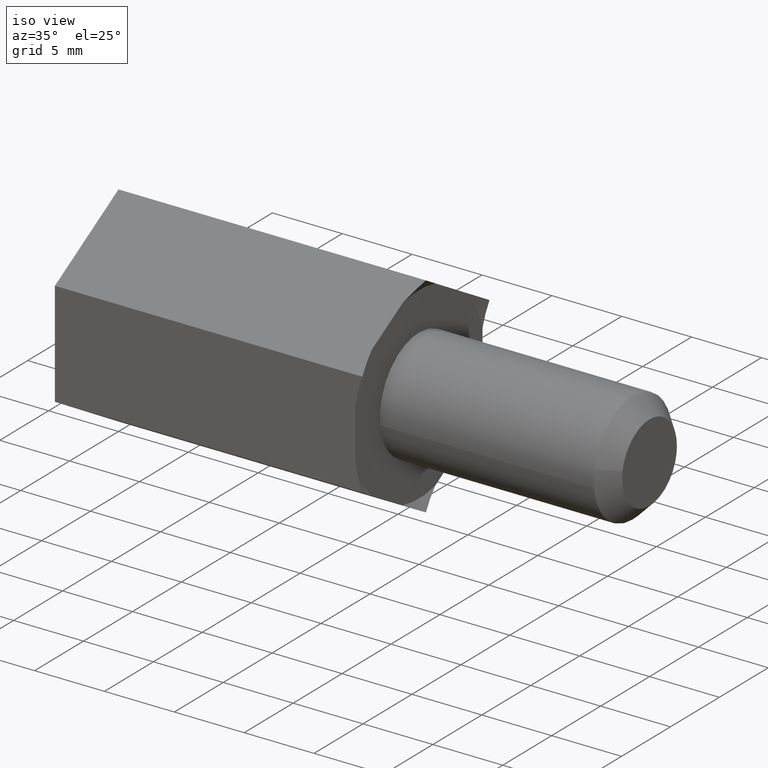
[diagram: clean part render]
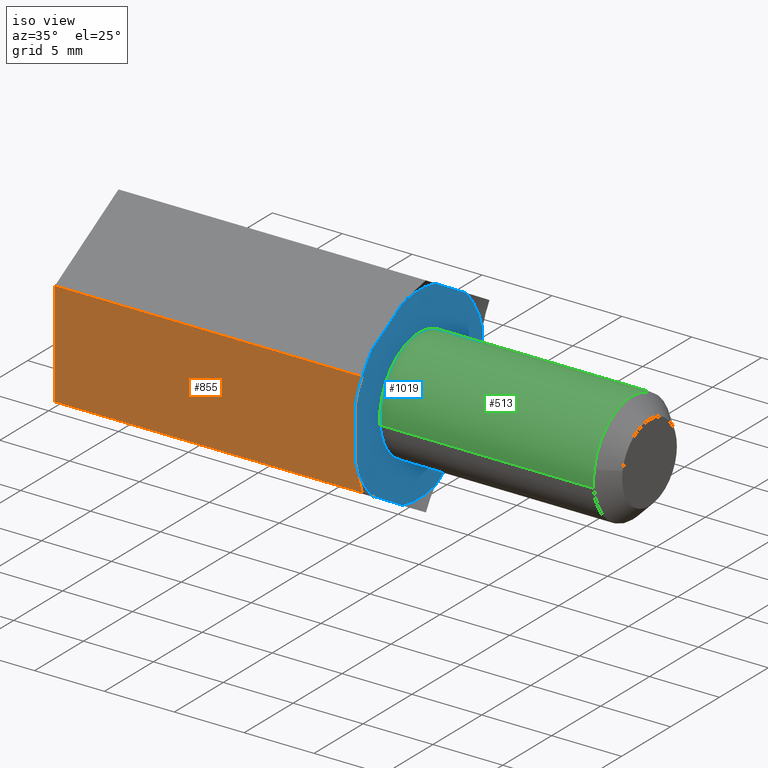
[diagram: same view with three faces highlighted in distinct colors, each labeled with its STEP entity id]
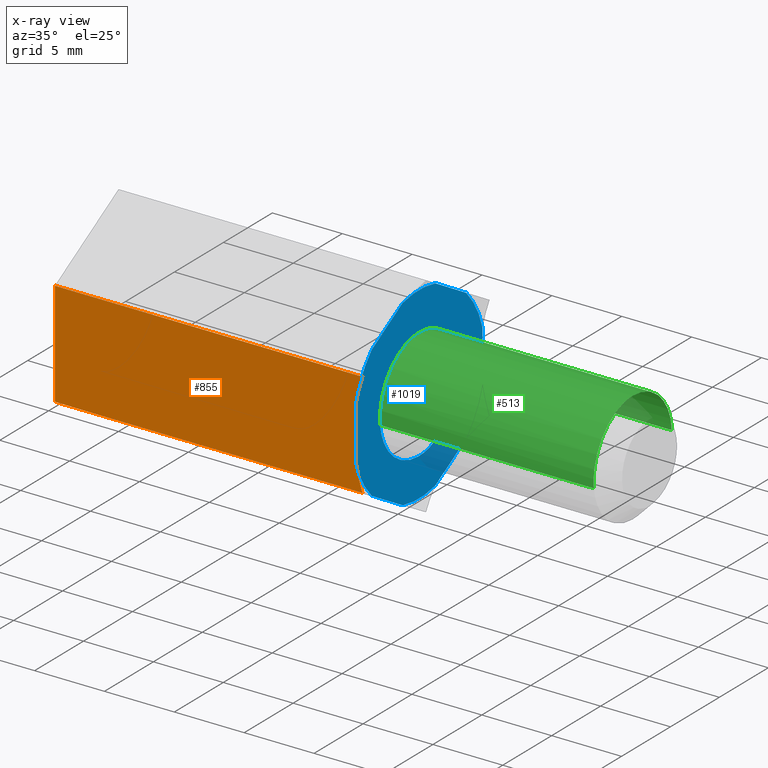
[diagram: x-ray of the same camera — body ghosted, the three highlighted faces saturated]
A machine part, iso view with three faces highlighted in distinct colors.
The next image is the same camera in x-ray (body ghosted, the three faces saturated) — at least one of them is partly hidden behind the body in this view.
Their STEP definitions:

[orange] entity #855 — the highlighted face is a freeform B-spline surface patch.
#755=CARTESIAN_POINT('',(22.0,-6.500030202791479,-3.752817437978915));
#756=VERTEX_POINT('',#755);
#772=CARTESIAN_POINT('',(0.0,-6.500000000000000,-3.752800000000000));
#773=VERTEX_POINT('',#772);
#774=CARTESIAN_POINT('',(22.0,-6.500030202791479,-3.752817437978915));
#775=CARTESIAN_POINT('',(0.0,-6.500000000000000,-3.752800000000000));
#776=QUASI_UNIFORM_CURVE('',1,(#774,#775),.UNSPECIFIED.,.F.,.U.);
#777=EDGE_CURVE('',#756,#773,#776,.T.);
#804=CARTESIAN_POINT('',(-1.098899957359731,-6.500000000000000,4.127723884753853));
#805=CARTESIAN_POINT('',(-1.098899957359731,-6.500000000000000,-4.127724086767634));
#806=CARTESIAN_POINT('',(23.098900547445709,-6.500000000000000,4.127723884753853));
#807=CARTESIAN_POINT('',(23.098900547445709,-6.500000000000000,-4.127724086767634));
#808=B_SPLINE_SURFACE_WITH_KNOTS('',1,1,((#804,#806),(#805,#807)),.UNSPECIFIED.,.F.,.F.,.U.,(2,2),(2,2),(0.0,8.255447971521488),(0.0,24.197800504805439),.UNSPECIFIED.);
#809=CARTESIAN_POINT('',(22.0,-6.500030203193870,3.752817437281950));
#810=VERTEX_POINT('',#809);
#811=CARTESIAN_POINT('',(21.500000000000000,-6.500000000000000,1.820027472320130));
#812=VERTEX_POINT('',#811);
#813=CARTESIAN_POINT('',(22.0,-6.500030203193870,3.752817437281950));
#814=CARTESIAN_POINT('',(21.899631590712239,-6.500025379989542,3.449475447014697));
#815=CARTESIAN_POINT('',(21.807243653070788,-6.500020538274503,3.142805209942485));
#816=CARTESIAN_POINT('',(21.642876491832510,-6.500010807244426,2.520935418611853));
#817=CARTESIAN_POINT('',(21.571798829861901,-6.500005968184482,2.208933825969666));
#818=CARTESIAN_POINT('',(21.509096226766712,-6.500000774045899,1.870522637043986));
#819=CARTESIAN_POINT('',(21.504505260712062,-6.500000386918038,1.845278977143948));
#820=CARTESIAN_POINT('',(21.500000000000000,-6.500000000000000,1.820027472320130));
#821=B_SPLINE_CURVE_WITH_KNOTS('',3,(#813,#814,#815,#816,#817,#818,#819,#820),.UNSPECIFIED.,.F.,.U.,(4,2,2,4),(0.000006476241290,0.125000000000000,0.250000000000000,0.260072590094712),.UNSPECIFIED.);
#822=EDGE_CURVE('',#810,#812,#821,.T.);
#823=ORIENTED_EDGE('',*,*,#822,.F.);
#824=CARTESIAN_POINT('',(0.0,-6.500000000000000,3.752800000000000));
#825=VERTEX_POINT('',#824);
#826=CARTESIAN_POINT('',(22.0,-6.500030203193870,3.752817437281950));
#827=CARTESIAN_POINT('',(0.0,-6.500000000000000,3.752800000000000));
#828=QUASI_UNIFORM_CURVE('',1,(#826,#827),.UNSPECIFIED.,.F.,.U.);
#829=EDGE_CURVE('',#810,#825,#828,.T.);
#830=ORIENTED_EDGE('',*,*,#829,.T.);
#831=CARTESIAN_POINT('',(0.0,-6.500000000000000,-3.752800000000000));
#832=CARTESIAN_POINT('',(0.0,-6.500000000000000,3.752800000000000));
#833=QUASI_UNIFORM_CURVE('',1,(#831,#832),.UNSPECIFIED.,.F.,.U.);
#834=EDGE_CURVE('',#773,#825,#833,.T.);
#835=ORIENTED_EDGE('',*,*,#834,.F.);
#836=ORIENTED_EDGE('',*,*,#777,.F.);
#837=CARTESIAN_POINT('',(21.500000000000000,-6.500000000000000,-1.820027472320130));
#838=VERTEX_POINT('',#837);
#839=CARTESIAN_POINT('',(21.500000000000000,-6.500000000000000,-1.820027472320130));
#840=CARTESIAN_POINT('',(21.505351194392990,-6.500000459538708,-1.850018763683645));
#841=CARTESIAN_POINT('',(21.510819255601231,-6.500000919038809,-1.879977187578140));
#842=CARTESIAN_POINT('',(21.633328553379890,-6.500011001222829,-2.536659269663350));
#843=CARTESIAN_POINT('',(21.800322370404199,-6.500020607405506,-3.149334329996048));
#844=CARTESIAN_POINT('',(22.0,-6.500030202791479,-3.752817437978915));
#845=B_SPLINE_CURVE_WITH_KNOTS('',3,(#839,#840,#841,#842,#843,#844),.UNSPECIFIED.,.F.,.U.,(4,2,4),(0.738063403781413,0.750000000000000,0.999993489330758),.UNSPECIFIED.);
#846=EDGE_CURVE('',#838,#756,#845,.T.);
#847=ORIENTED_EDGE('',*,*,#846,.F.);
#848=CARTESIAN_POINT('',(21.500000000000000,-6.500000000000000,1.820027472320130));
#849=CARTESIAN_POINT('',(21.500000000000000,-6.500000000000000,-1.820027472320130));
#850=QUASI_UNIFORM_CURVE('',1,(#848,#849),.UNSPECIFIED.,.F.,.U.);
#851=EDGE_CURVE('',#812,#838,#850,.T.);
#852=ORIENTED_EDGE('',*,*,#851,.F.);
#853=EDGE_LOOP('',(#823,#830,#835,#836,#847,#852));
#854=FACE_OUTER_BOUND('',#853,.T.);
#855=ADVANCED_FACE('',(#854),#808,.T.);

[blue] entity #1019 — the highlighted face is a freeform B-spline surface patch.
#464=CARTESIAN_POINT('',(21.500000000000000,-3.972038105450791,-0.472136938659629));
#465=VERTEX_POINT('',#464);
#466=CARTESIAN_POINT('',(21.500000000000000,0.0,4.0));
#467=VERTEX_POINT('',#466);
#468=CARTESIAN_POINT('',(21.499999999999993,-3.972038105450791,-0.472136938659628));
#469=CARTESIAN_POINT('',(21.500000000000000,-4.0,-0.236896478640580));
#470=CARTESIAN_POINT('',(21.500000000000000,-4.0,0.0));
#471=CARTESIAN_POINT('',(21.499999999999996,-4.000000000000000,4.000000000000000));
#472=CARTESIAN_POINT('',(21.500000000000000,0.0,4.0));
#480=(BOUNDED_CURVE()B_SPLINE_CURVE(2,(#468,#469,#470,#471,#472),.UNSPECIFIED.,.F.,.U.)B_SPLINE_CURVE_WITH_KNOTS((3,2,3),(0.729562473512871,0.750000000000000,1.0),.UNSPECIFIED.)CURVE()GEOMETRIC_REPRESENTATION_ITEM()RATIONAL_B_SPLINE_CURVE((0.956026754182449,0.976055948330398,1.0,0.707106781186548,1.0))REPRESENTATION_ITEM(''));
#481=EDGE_CURVE('',#465,#467,#480,.T.);
#491=CARTESIAN_POINT('',(21.500000000000000,3.992539193685000,0.244194158179767));
#492=VERTEX_POINT('',#491);
#498=CARTESIAN_POINT('',(21.500000000000000,0.0,4.0));
#499=CARTESIAN_POINT('',(21.500000000000000,3.762824267546601,4.000000000000001));
#500=CARTESIAN_POINT('',(21.500000000000004,3.992539193685000,0.244194158179767));
#508=(BOUNDED_CURVE()B_SPLINE_CURVE(2,(#498,#499,#500),.UNSPECIFIED.,.F.,.U.)B_SPLINE_CURVE_WITH_KNOTS((3,3),(0.0,0.239332962238482),.UNSPECIFIED.)CURVE()GEOMETRIC_REPRESENTATION_ITEM()RATIONAL_B_SPLINE_CURVE((1.0,0.719603993287251,0.976072041665729))REPRESENTATION_ITEM(''));
#509=EDGE_CURVE('',#467,#492,#508,.T.);
#532=CARTESIAN_POINT('',(21.500000000000000,0.0,-4.0));
#533=VERTEX_POINT('',#532);
#534=CARTESIAN_POINT('',(21.500000000000000,0.0,-4.0));
#535=CARTESIAN_POINT('',(21.500000000000004,-3.552698103746738,-4.000000000000000));
#536=CARTESIAN_POINT('',(21.500000000000000,-3.972038105450791,-0.472136938659628));
#544=(BOUNDED_CURVE()B_SPLINE_CURVE(2,(#534,#535,#536),.UNSPECIFIED.,.F.,.U.)B_SPLINE_CURVE_WITH_KNOTS((3,3),(0.500000000000000,0.729562473512870),.UNSPECIFIED.)CURVE()GEOMETRIC_REPRESENTATION_ITEM()RATIONAL_B_SPLINE_CURVE((1.0,0.731050832856151,0.956026754182448))REPRESENTATION_ITEM(''));
#545=EDGE_CURVE('',#533,#465,#544,.T.);
#547=CARTESIAN_POINT('',(21.500000000000004,3.992539193685000,0.244194158179767));
#548=CARTESIAN_POINT('',(21.499999999999996,4.000000000000001,0.122211053234808));
#549=CARTESIAN_POINT('',(21.500000000000000,4.0,0.0));
#550=CARTESIAN_POINT('',(21.499999999999996,4.000000000000000,-4.000000000000000));
#551=CARTESIAN_POINT('',(21.500000000000000,0.0,-4.0));
#559=(BOUNDED_CURVE()B_SPLINE_CURVE(2,(#547,#548,#549,#550,#551),.UNSPECIFIED.,.F.,.U.)B_SPLINE_CURVE_WITH_KNOTS((3,2,3),(0.239332962238482,0.250000000000000,0.500000000000000),.UNSPECIFIED.)CURVE()GEOMETRIC_REPRESENTATION_ITEM()RATIONAL_B_SPLINE_CURVE((0.976072041665729,0.987502787899297,1.0,0.707106781186548,1.0))REPRESENTATION_ITEM(''));
#560=EDGE_CURVE('',#492,#533,#559,.T.);
#589=CARTESIAN_POINT('',(21.500000000000000,4.826124370814700,4.719218532493331));
#590=VERTEX_POINT('',#589);
#625=CARTESIAN_POINT('',(21.500000000000000,1.673936035152030,6.539146591889460));
#626=VERTEX_POINT('',#625);
#636=CARTESIAN_POINT('',(21.500000000000000,4.826124370814700,4.719218532493331));
#637=CARTESIAN_POINT('',(21.500000000000000,1.673936035152030,6.539146591889460));
#638=QUASI_UNIFORM_CURVE('',1,(#636,#637),.UNSPECIFIED.,.F.,.U.);
#639=EDGE_CURVE('',#590,#626,#638,.T.);
#651=CARTESIAN_POINT('',(21.500000000000000,6.500000000000000,-1.820027472320130));
#652=VERTEX_POINT('',#651);
#677=CARTESIAN_POINT('',(21.500000000000000,6.500000000000000,1.820027472320130));
#678=VERTEX_POINT('',#677);
#688=CARTESIAN_POINT('',(21.500000000000000,6.500000000000000,-1.820027472320130));
#689=CARTESIAN_POINT('',(21.500000000000000,6.500000000000000,1.820027472320130));
#690=QUASI_UNIFORM_CURVE('',1,(#688,#689),.UNSPECIFIED.,.F.,.U.);
#691=EDGE_CURVE('',#652,#678,#690,.T.);
#703=CARTESIAN_POINT('',(21.500000000000000,1.673705002214420,-6.539205728952291));
#704=VERTEX_POINT('',#703);
#731=CARTESIAN_POINT('',(21.500000000000000,4.826182197785970,-4.719159394825920));
#732=VERTEX_POINT('',#731);
#742=CARTESIAN_POINT('',(21.500000000000000,1.673705002214420,-6.539205728952291));
#743=CARTESIAN_POINT('',(21.500000000000000,4.826182197785970,-4.719159394825920));
#744=QUASI_UNIFORM_CURVE('',1,(#742,#743),.UNSPECIFIED.,.F.,.U.);
#745=EDGE_CURVE('',#704,#732,#744,.T.);
#757=CARTESIAN_POINT('',(21.500000000000000,-4.826182197785970,-4.719159394825930));
#758=VERTEX_POINT('',#757);
#785=CARTESIAN_POINT('',(21.500000000000000,-1.673705002214425,-6.539205728952291));
#786=VERTEX_POINT('',#785);
#796=CARTESIAN_POINT('',(21.500000000000000,-4.826182197785970,-4.719159394825930));
#797=CARTESIAN_POINT('',(21.500000000000000,-1.673705002214425,-6.539205728952291));
#798=QUASI_UNIFORM_CURVE('',1,(#796,#797),.UNSPECIFIED.,.F.,.U.);
#799=EDGE_CURVE('',#758,#786,#798,.T.);
#811=CARTESIAN_POINT('',(21.500000000000000,-6.500000000000000,1.820027472320130));
#812=VERTEX_POINT('',#811);
#837=CARTESIAN_POINT('',(21.500000000000000,-6.500000000000000,-1.820027472320130));
#838=VERTEX_POINT('',#837);
#848=CARTESIAN_POINT('',(21.500000000000000,-6.500000000000000,1.820027472320130));
#849=CARTESIAN_POINT('',(21.500000000000000,-6.500000000000000,-1.820027472320130));
#850=QUASI_UNIFORM_CURVE('',1,(#848,#849),.UNSPECIFIED.,.F.,.U.);
#851=EDGE_CURVE('',#812,#838,#850,.T.);
#861=CARTESIAN_POINT('',(21.500000000000000,-1.673936035152030,6.539146591889460));
#862=VERTEX_POINT('',#861);
#883=CARTESIAN_POINT('',(21.500000000000000,-4.826124370814700,4.719218532493320));
#884=VERTEX_POINT('',#883);
#894=CARTESIAN_POINT('',(21.500000000000000,-1.673936035152030,6.539146591889460));
#895=CARTESIAN_POINT('',(21.500000000000000,-4.826124370814700,4.719218532493320));
#896=QUASI_UNIFORM_CURVE('',1,(#894,#895),.UNSPECIFIED.,.F.,.U.);
#897=EDGE_CURVE('',#862,#884,#896,.T.);
#917=CARTESIAN_POINT('',(21.500000000000000,-6.500000000000001,1.820027472320127));
#918=CARTESIAN_POINT('',(21.500000000000000,-6.034120657317083,3.483857152637354));
#919=CARTESIAN_POINT('',(21.500000000000000,-4.826124370814700,4.719218532493322));
#927=(BOUNDED_CURVE()B_SPLINE_CURVE(2,(#917,#918,#919),.UNSPECIFIED.,.F.,.U.)CURVE()GEOMETRIC_REPRESENTATION_ITEM()QUASI_UNIFORM_CURVE()RATIONAL_B_SPLINE_CURVE((1.0,0.968765513649683,1.0))REPRESENTATION_ITEM(''));
#928=EDGE_CURVE('',#812,#884,#927,.T.);
#934=CARTESIAN_POINT('',(21.500000000000000,-7.149349974803478,-7.424324973834381));
#935=CARTESIAN_POINT('',(21.500000000000000,-7.149349974803478,7.424325335932599));
#936=CARTESIAN_POINT('',(21.500000000000000,7.149350323490650,-7.424324973834381));
#937=CARTESIAN_POINT('',(21.500000000000000,7.149350323490650,7.424325335932599));
#938=B_SPLINE_SURFACE_WITH_KNOTS('',1,1,((#934,#936),(#935,#937)),.UNSPECIFIED.,.F.,.F.,.U.,(2,2),(2,2),(0.0,14.848650309766979),(0.0,14.298700298294129),.UNSPECIFIED.);
#939=ORIENTED_EDGE('',*,*,#639,.T.);
#940=CARTESIAN_POINT('',(21.500000000000000,-1.673936035152030,6.539146591889457));
#941=CARTESIAN_POINT('',(21.500000000000004,-1.084202E-015,6.967652331958950));
#942=CARTESIAN_POINT('',(21.500000000000000,1.673936035152027,6.539146591889458));
#950=(BOUNDED_CURVE()B_SPLINE_CURVE(2,(#940,#941,#942),.UNSPECIFIED.,.F.,.U.)CURVE()GEOMETRIC_REPRESENTATION_ITEM()QUASI_UNIFORM_CURVE()RATIONAL_B_SPLINE_CURVE((1.0,0.968762458057698,1.0))REPRESENTATION_ITEM(''));
#951=EDGE_CURVE('',#862,#626,#950,.T.);
#952=ORIENTED_EDGE('',*,*,#951,.F.);
#953=ORIENTED_EDGE('',*,*,#897,.T.);
#954=ORIENTED_EDGE('',*,*,#928,.F.);
#955=ORIENTED_EDGE('',*,*,#851,.T.);
#956=CARTESIAN_POINT('',(21.500000000000000,-4.826182197785967,-4.719159394825927));
#957=CARTESIAN_POINT('',(21.499999999999996,-6.034132538864485,-3.483814719180008));
#958=CARTESIAN_POINT('',(21.500000000000000,-6.500000000000001,-1.820027472320130));
#966=(BOUNDED_CURVE()B_SPLINE_CURVE(2,(#956,#957,#958),.UNSPECIFIED.,.F.,.U.)CURVE()GEOMETRIC_REPRESENTATION_ITEM()QUASI_UNIFORM_CURVE()RATIONAL_B_SPLINE_CURVE((1.0,0.968767032944536,1.0))REPRESENTATION_ITEM(''));
#967=EDGE_CURVE('',#758,#838,#966,.T.);
#968=ORIENTED_EDGE('',*,*,#967,.F.);
#969=ORIENTED_EDGE('',*,*,#799,.T.);
#970=CARTESIAN_POINT('',(21.500000000000000,1.673705002214420,-6.539205728952289));
#971=CARTESIAN_POINT('',(21.500000000000004,4.336809E-016,-6.967589320255264));
#972=CARTESIAN_POINT('',(21.500000000000000,-1.673705002214422,-6.539205728952288));
#980=(BOUNDED_CURVE()B_SPLINE_CURVE(2,(#970,#971,#972),.UNSPECIFIED.,.F.,.U.)CURVE()GEOMETRIC_REPRESENTATION_ITEM()QUASI_UNIFORM_CURVE()RATIONAL_B_SPLINE_CURVE((1.0,0.968771219104043,1.0))REPRESENTATION_ITEM(''));
#981=EDGE_CURVE('',#704,#786,#980,.T.);
#982=ORIENTED_EDGE('',*,*,#981,.F.);
#983=ORIENTED_EDGE('',*,*,#745,.T.);
#984=CARTESIAN_POINT('',(21.500000000000000,6.500000000000001,-1.820027472320129));
#985=CARTESIAN_POINT('',(21.499999999999996,6.034132538864486,-3.483814719180003));
#986=CARTESIAN_POINT('',(21.500000000000000,4.826182197785973,-4.719159394825922));
#994=(BOUNDED_CURVE()B_SPLINE_CURVE(2,(#984,#985,#986),.UNSPECIFIED.,.F.,.U.)CURVE()GEOMETRIC_REPRESENTATION_ITEM()QUASI_UNIFORM_CURVE()RATIONAL_B_SPLINE_CURVE((1.0,0.968767032944536,1.0))REPRESENTATION_ITEM(''));
#995=EDGE_CURVE('',#652,#732,#994,.T.);
#996=ORIENTED_EDGE('',*,*,#995,.F.);
#997=ORIENTED_EDGE('',*,*,#691,.T.);
#998=CARTESIAN_POINT('',(21.500000000000000,4.826124370814696,4.719218532493327));
#999=CARTESIAN_POINT('',(21.500000000000004,6.034120657317081,3.483857152637357));
#1000=CARTESIAN_POINT('',(21.500000000000000,6.500000000000000,1.820027472320130));
#1008=(BOUNDED_CURVE()B_SPLINE_CURVE(2,(#998,#999,#1000),.UNSPECIFIED.,.F.,.U.)CURVE()GEOMETRIC_REPRESENTATION_ITEM()QUASI_UNIFORM_CURVE()RATIONAL_B_SPLINE_CURVE((1.0,0.968765513649683,1.0))REPRESENTATION_ITEM(''));
#1009=EDGE_CURVE('',#590,#678,#1008,.T.);
#1010=ORIENTED_EDGE('',*,*,#1009,.F.);
#1011=EDGE_LOOP('',(#939,#952,#953,#954,#955,#968,#969,#982,#983,#996,#997,#1010));
#1012=FACE_OUTER_BOUND('',#1011,.T.);
#1013=ORIENTED_EDGE('',*,*,#509,.T.);
#1014=ORIENTED_EDGE('',*,*,#560,.T.);
#1015=ORIENTED_EDGE('',*,*,#545,.T.);
#1016=ORIENTED_EDGE('',*,*,#481,.T.);
#1017=EDGE_LOOP('',(#1013,#1014,#1015,#1016));
#1018=FACE_BOUND('',#1017,.T.);
#1019=ADVANCED_FACE('',(#1012,#1018),#938,.F.);

[green] entity #513 — the highlighted face is a freeform B-spline surface patch.
#244=CARTESIAN_POINT('',(36.799999999984472,-3.932359569543480,0.732494515982311));
#245=VERTEX_POINT('',#244);
#246=CARTESIAN_POINT('',(36.799999999999997,0.0,4.0));
#247=VERTEX_POINT('',#246);
#248=CARTESIAN_POINT('',(36.799999999984465,-3.932359569543480,0.732494515982311));
#249=CARTESIAN_POINT('',(36.799999999999997,-3.323709773880725,4.0));
#250=CARTESIAN_POINT('',(36.799999999999997,0.0,4.0));
#258=(BOUNDED_CURVE()B_SPLINE_CURVE(2,(#248,#249,#250),.UNSPECIFIED.,.F.,.U.)B_SPLINE_CURVE_WITH_KNOTS((3,3),(0.281445263723857,0.500000000000000),.UNSPECIFIED.)CURVE()GEOMETRIC_REPRESENTATION_ITEM()RATIONAL_B_SPLINE_CURVE((0.935586817218081,0.743947199220621,1.0))REPRESENTATION_ITEM(''));
#259=EDGE_CURVE('',#245,#247,#258,.T.);
#307=CARTESIAN_POINT('',(36.799999999999997,3.992539193685000,0.244194158179768));
#308=VERTEX_POINT('',#307);
#324=CARTESIAN_POINT('',(36.799999999999997,0.0,4.0));
#325=CARTESIAN_POINT('',(36.800000000000004,3.762824267546587,4.000000000000000));
#326=CARTESIAN_POINT('',(36.799999999999997,3.992539193685000,0.244194158179768));
#334=(BOUNDED_CURVE()B_SPLINE_CURVE(2,(#324,#325,#326),.UNSPECIFIED.,.F.,.U.)B_SPLINE_CURVE_WITH_KNOTS((3,3),(0.500000000000000,0.739332962238481),.UNSPECIFIED.)CURVE()GEOMETRIC_REPRESENTATION_ITEM()RATIONAL_B_SPLINE_CURVE((1.0,0.719603993287251,0.976072041665728))REPRESENTATION_ITEM(''));
#335=EDGE_CURVE('',#247,#308,#334,.T.);
#362=CARTESIAN_POINT('',(36.799999999999997,-3.972038105450791,-0.472136938659628));
#363=VERTEX_POINT('',#362);
#364=CARTESIAN_POINT('',(36.799999999999997,-3.972038105450792,-0.472136938659628));
#365=CARTESIAN_POINT('',(36.799999999999997,-4.000000000000001,-0.236896478640579));
#366=CARTESIAN_POINT('',(36.799999999999997,-4.0,0.0));
#367=CARTESIAN_POINT('',(36.799999999999997,-4.0,0.369370303848572));
#368=CARTESIAN_POINT('',(36.799999999984458,-3.932359569543480,0.732494515982311));
#376=(BOUNDED_CURVE()B_SPLINE_CURVE(2,(#364,#365,#366,#367,#368),.UNSPECIFIED.,.F.,.U.)B_SPLINE_CURVE_WITH_KNOTS((3,2,3),(0.229562473512871,0.250000000000000,0.281445263723857),.UNSPECIFIED.)CURVE()GEOMETRIC_REPRESENTATION_ITEM()RATIONAL_B_SPLINE_CURVE((0.956026754182449,0.976055948330398,1.0,0.963159581965927,0.935586817218082))REPRESENTATION_ITEM(''));
#377=EDGE_CURVE('',#363,#245,#376,.T.);
#442=CARTESIAN_POINT('',(37.182500000000005,-3.972038105454666,-0.472136938627034));
#443=CARTESIAN_POINT('',(37.182500000000005,-3.985550461794422,-0.358458914551911));
#444=CARTESIAN_POINT('',(37.182500000000012,-3.992539193687467,-0.244194158139428));
#445=CARTESIAN_POINT('',(37.182500000000005,-4.236733351826894,3.748345035548039));
#446=CARTESIAN_POINT('',(37.182500000000012,-0.244194158139428,3.992539193687467));
#447=CARTESIAN_POINT('',(37.182500000000005,3.748345035548039,4.236733351826894));
#448=CARTESIAN_POINT('',(37.182500000000012,3.992539193687467,0.244194158139428));
#449=CARTESIAN_POINT('',(21.107937500000006,-3.972038105454666,-0.472136938627034));
#450=CARTESIAN_POINT('',(21.107937499999998,-3.985550461794422,-0.358458914551911));
#451=CARTESIAN_POINT('',(21.107937499999998,-3.992539193687467,-0.244194158139428));
#452=CARTESIAN_POINT('',(21.107937499999998,-4.236733351826894,3.748345035548039));
#453=CARTESIAN_POINT('',(21.107937499999998,-0.244194158139428,3.992539193687467));
#454=CARTESIAN_POINT('',(21.107937499999998,3.748345035548039,4.236733351826894));
#455=CARTESIAN_POINT('',(21.107937499999998,3.992539193687467,0.244194158139428));
#463=(BOUNDED_SURFACE()B_SPLINE_SURFACE(2,1,((#442,#449),(#443,#450),(#444,#451),(#445,#452),(#446,#453),(#447,#454),(#448,#455)),.UNSPECIFIED.,.F.,.F.,.U.)B_SPLINE_SURFACE_WITH_KNOTS((3,2,2,3),(2,2),(0.0,0.265096679918781,6.892513677888299,13.519930675857820),(0.0,16.074562500000010),.UNSPECIFIED.)GEOMETRIC_REPRESENTATION_ITEM()RATIONAL_B_SPLINE_SURFACE(((0.977505800795127,0.977505800795127),(0.988284271247462,0.988284271247462),(1.0,1.0),(0.707106781186548,0.707106781186548),(1.0,1.0),(0.707106781186548,0.707106781186548),(1.0,1.0)))REPRESENTATION_ITEM('')SURFACE());
#464=CARTESIAN_POINT('',(21.500000000000000,-3.972038105450791,-0.472136938659629));
#465=VERTEX_POINT('',#464);
#466=CARTESIAN_POINT('',(21.500000000000000,0.0,4.0));
#467=VERTEX_POINT('',#466);
#468=CARTESIAN_POINT('',(21.499999999999993,-3.972038105450791,-0.472136938659628));
#469=CARTESIAN_POINT('',(21.500000000000000,-4.0,-0.236896478640580));
#470=CARTESIAN_POINT('',(21.500000000000000,-4.0,0.0));
#471=CARTESIAN_POINT('',(21.499999999999996,-4.000000000000000,4.000000000000000));
#472=CARTESIAN_POINT('',(21.500000000000000,0.0,4.0));
#480=(BOUNDED_CURVE()B_SPLINE_CURVE(2,(#468,#469,#470,#471,#472),.UNSPECIFIED.,.F.,.U.)B_SPLINE_CURVE_WITH_KNOTS((3,2,3),(0.729562473512871,0.750000000000000,1.0),.UNSPECIFIED.)CURVE()GEOMETRIC_REPRESENTATION_ITEM()RATIONAL_B_SPLINE_CURVE((0.956026754182449,0.976055948330398,1.0,0.707106781186548,1.0))REPRESENTATION_ITEM(''));
#481=EDGE_CURVE('',#465,#467,#480,.T.);
#482=ORIENTED_EDGE('',*,*,#481,.F.);
#483=CARTESIAN_POINT('',(36.799999999999997,-3.972038105450791,-0.472136938659628));
#484=CARTESIAN_POINT('',(21.500000000000000,-3.972038105450791,-0.472136938659629));
#485=QUASI_UNIFORM_CURVE('',1,(#483,#484),.UNSPECIFIED.,.F.,.U.);
#486=EDGE_CURVE('',#363,#465,#485,.T.);
#487=ORIENTED_EDGE('',*,*,#486,.F.);
#488=ORIENTED_EDGE('',*,*,#377,.T.);
#489=ORIENTED_EDGE('',*,*,#259,.T.);
#490=ORIENTED_EDGE('',*,*,#335,.T.);
#491=CARTESIAN_POINT('',(21.500000000000000,3.992539193685000,0.244194158179767));
#492=VERTEX_POINT('',#491);
#493=CARTESIAN_POINT('',(36.799999999999997,3.992539193685000,0.244194158179768));
#494=CARTESIAN_POINT('',(21.500000000000000,3.992539193685000,0.244194158179767));
#495=QUASI_UNIFORM_CURVE('',1,(#493,#494),.UNSPECIFIED.,.F.,.U.);
#496=EDGE_CURVE('',#308,#492,#495,.T.);
#497=ORIENTED_EDGE('',*,*,#496,.T.);
#498=CARTESIAN_POINT('',(21.500000000000000,0.0,4.0));
#499=CARTESIAN_POINT('',(21.500000000000000,3.762824267546601,4.000000000000001));
#500=CARTESIAN_POINT('',(21.500000000000004,3.992539193685000,0.244194158179767));
#508=(BOUNDED_CURVE()B_SPLINE_CURVE(2,(#498,#499,#500),.UNSPECIFIED.,.F.,.U.)B_SPLINE_CURVE_WITH_KNOTS((3,3),(0.0,0.239332962238482),.UNSPECIFIED.)CURVE()GEOMETRIC_REPRESENTATION_ITEM()RATIONAL_B_SPLINE_CURVE((1.0,0.719603993287251,0.976072041665729))REPRESENTATION_ITEM(''));
#509=EDGE_CURVE('',#467,#492,#508,.T.);
#510=ORIENTED_EDGE('',*,*,#509,.F.);
#511=EDGE_LOOP('',(#482,#487,#488,#489,#490,#497,#510));
#512=FACE_OUTER_BOUND('',#511,.T.);
#513=ADVANCED_FACE('',(#512),#463,.T.);